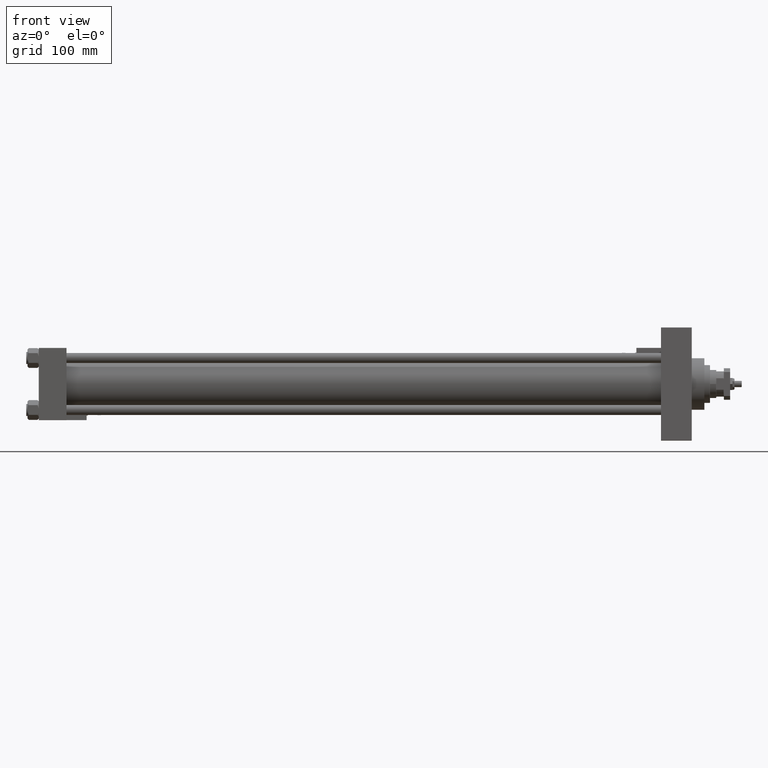
[diagram: clean part render]
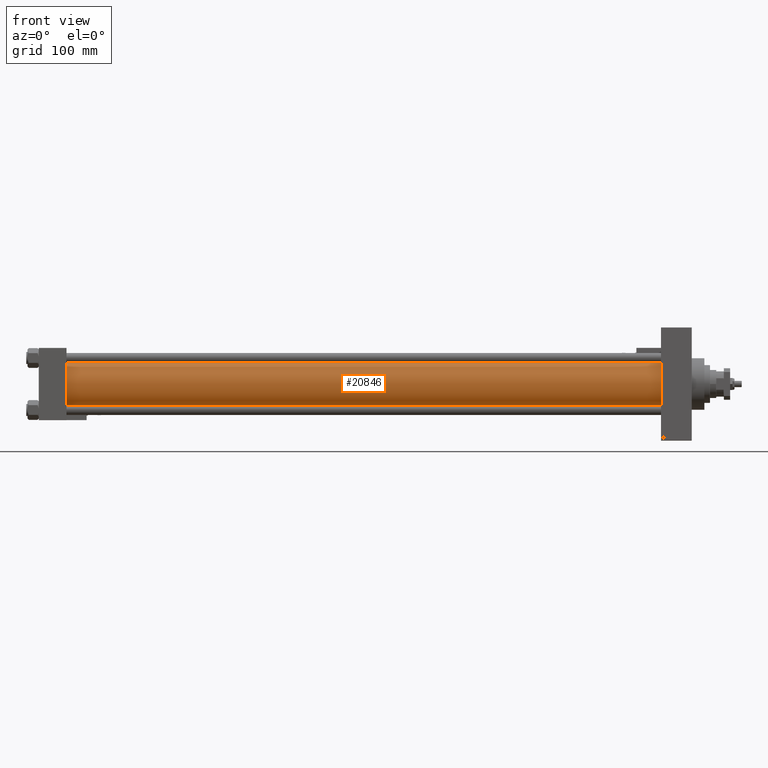
[diagram: same view with one face highlighted and labeled with its STEP entity id]
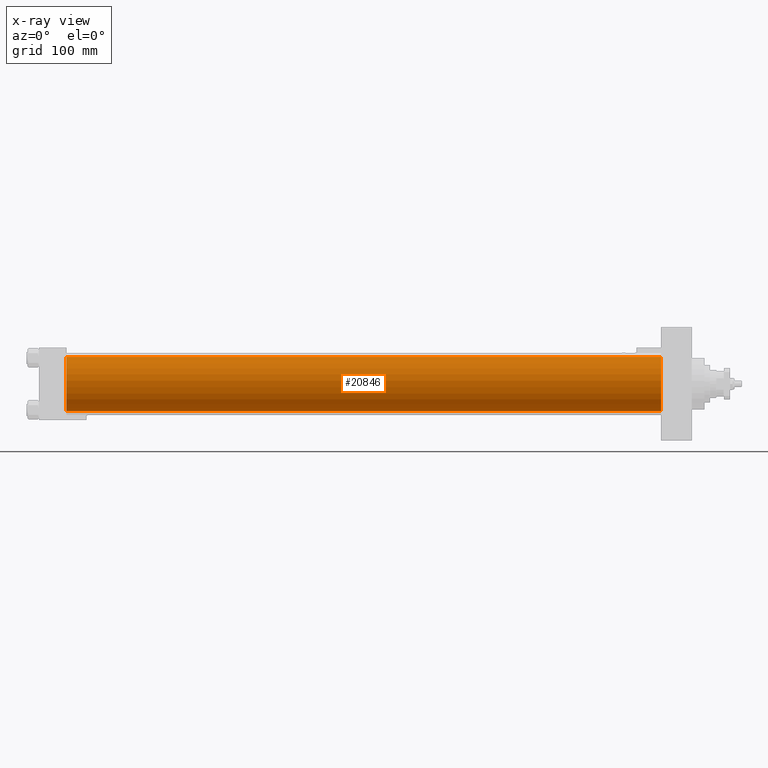
[diagram: x-ray of the same camera — body ghosted, the highlighted face saturated]
A machine part, front view. The second image highlights one B-rep face of the part: STEP entity #20846.
The next image is the same camera in x-ray: the body ghosted, the highlighted face saturated — about 0% of this face is hidden behind the body in this view.
In plain terms, the highlighted cylindrical surface (edge-blend (fillet) strip) has radius 43 mm, axis along (-1, -0, -0).
Its self-contained STEP definition (entity closure, byte-faithful):
#2662 = FACE_OUTER_BOUND ( 'NONE', #9484, .T. ) ;
#3995 = CARTESIAN_POINT ( 'NONE',  ( 989.0000000000000000, -2.602085213965210642E-15, 0.000000000000000000 ) ) ;
#4819 = VERTEX_POINT ( 'NONE', #34577 ) ;
#6464 = EDGE_CURVE ( 'NONE', #4819, #22730, #20115, .T. ) ;
#9484 = EDGE_LOOP ( 'NONE', ( #37526, #42258, #14731, #19196 ) ) ;
#11064 = VERTEX_POINT ( 'NONE', #51135 ) ;
#12468 = DIRECTION ( 'NONE',  ( -1.000000000000000000, -0.000000000000000000, -0.000000000000000000 ) ) ;
#12816 = AXIS2_PLACEMENT_3D ( 'NONE', #50919, #12468, #23992 ) ;
#13043 = CIRCLE ( 'NONE', #42651, 43.00000000000000000 ) ;
#13794 = CIRCLE ( 'NONE', #45182, 43.00000000000000000 ) ;
#13833 = VERTEX_POINT ( 'NONE', #31928 ) ;
#14532 = CARTESIAN_POINT ( 'NONE',  ( 989.0000000000000000, 2.663896022368408223E-15, -43.00000000000000000 ) ) ;
#14731 = ORIENTED_EDGE ( 'NONE', *, *, #6464, .T. ) ;
#16909 = DIRECTION ( 'NONE',  ( 0.000000000000000000, 0.000000000000000000, 1.000000000000000000 ) ) ;
#19196 = ORIENTED_EDGE ( 'NONE', *, *, #31726, .T. ) ;
#19838 = DIRECTION ( 'NONE',  ( -1.000000000000000000, -0.000000000000000000, -0.000000000000000000 ) ) ;
#20115 = LINE ( 'NONE', #32464, #52645 ) ;
#20846 = ADVANCED_FACE ( 'NONE', ( #2662 ), #46703, .T. ) ;
#22730 = VERTEX_POINT ( 'NONE', #24453 ) ;
#23992 = DIRECTION ( 'NONE',  ( 0.000000000000000000, 0.000000000000000000, 1.000000000000000000 ) ) ;
#24224 = DIRECTION ( 'NONE',  ( 1.000000000000000000, -0.000000000000000000, 0.000000000000000000 ) ) ;
#24453 = CARTESIAN_POINT ( 'NONE',  ( 44.00000000000004263, -2.602085213965210642E-15, 43.00000000000000000 ) ) ;
#31637 = DIRECTION ( 'NONE',  ( -1.000000000000000000, -0.000000000000000000, -0.000000000000000000 ) ) ;
#31726 = EDGE_CURVE ( 'NONE', #22730, #11064, #13794, .T. ) ;
#31928 = CARTESIAN_POINT ( 'NONE',  ( 989.0000000000000000, 2.663896022368408223E-15, -43.00000000000000000 ) ) ;
#32464 = CARTESIAN_POINT ( 'NONE',  ( 989.0000000000000000, -2.602085213965210642E-15, 43.00000000000000000 ) ) ;
#34577 = CARTESIAN_POINT ( 'NONE',  ( 989.0000000000000000, -2.602085213965210642E-15, 43.00000000000000000 ) ) ;
#34973 = EDGE_CURVE ( 'NONE', #4819, #13833, #13043, .T. ) ;
#37526 = ORIENTED_EDGE ( 'NONE', *, *, #53053, .F. ) ;
#42258 = ORIENTED_EDGE ( 'NONE', *, *, #34973, .F. ) ;
#42441 = DIRECTION ( 'NONE',  ( 0.000000000000000000, 0.000000000000000000, -1.000000000000000000 ) ) ;
#42651 = AXIS2_PLACEMENT_3D ( 'NONE', #3995, #46651, #42441 ) ;
#45182 = AXIS2_PLACEMENT_3D ( 'NONE', #46666, #24224, #16909 ) ;
#46651 = DIRECTION ( 'NONE',  ( 1.000000000000000000, 0.000000000000000000, 0.000000000000000000 ) ) ;
#46666 = CARTESIAN_POINT ( 'NONE',  ( 44.00000000000004263, -2.602085213965210642E-15, 0.000000000000000000 ) ) ;
#46703 = CYLINDRICAL_SURFACE ( 'NONE', #12816, 43.00000000000000000 ) ;
#46958 = VECTOR ( 'NONE', #31637, 1000.000000000000000 ) ;
#50919 = CARTESIAN_POINT ( 'NONE',  ( 989.0000000000000000, -2.602085213965210642E-15, 0.000000000000000000 ) ) ;
#51135 = CARTESIAN_POINT ( 'NONE',  ( 44.00000000000004263, 2.663896022368408223E-15, -43.00000000000000000 ) ) ;
#52645 = VECTOR ( 'NONE', #19838, 1000.000000000000000 ) ;
#52970 = LINE ( 'NONE', #14532, #46958 ) ;
#53053 = EDGE_CURVE ( 'NONE', #13833, #11064, #52970, .T. ) ;